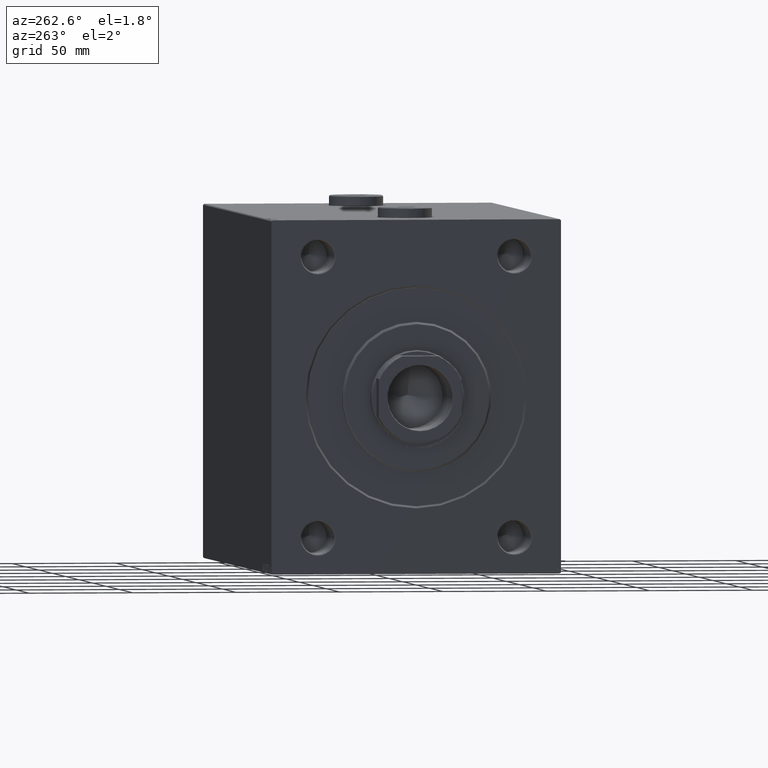
[diagram: clean part render]
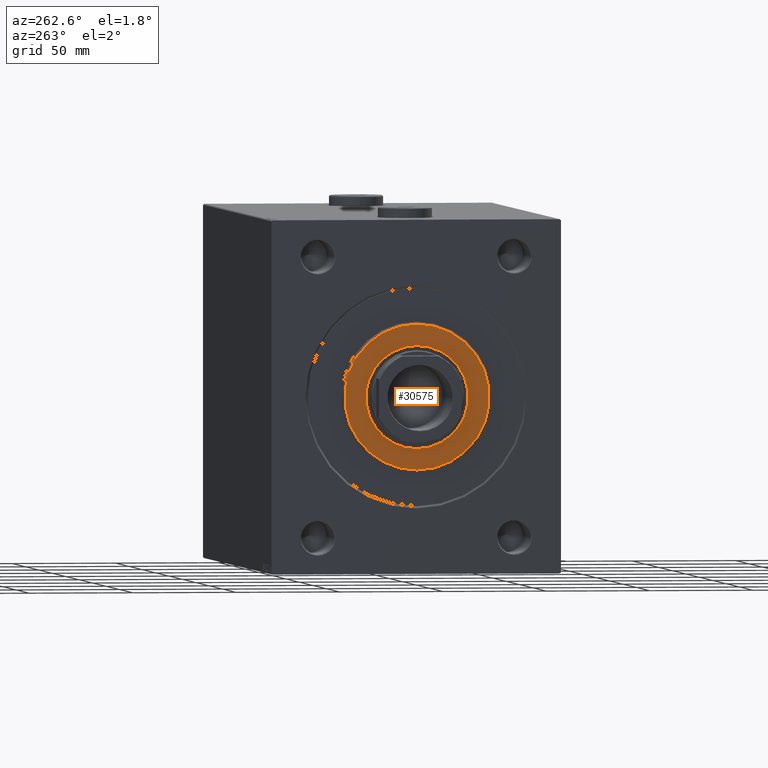
[diagram: same view with one face highlighted and labeled with its STEP entity id]
A machine part, auxiliary view. The second image highlights one B-rep face of the part: STEP entity #30575.
In plain terms, the highlighted planar face has unit normal (-1, 0, 0).
Its self-contained STEP definition (entity closure, byte-faithful):
#689 = CARTESIAN_POINT ( 'NONE',  ( 3.000000000000000000, 0.000000000000000000, 0.000000000000000000 ) ) ;
#1272 = EDGE_CURVE ( 'NONE', #11486, #17016, #29199, .T. ) ;
#1505 = CARTESIAN_POINT ( 'NONE',  ( 3.000000000000000000, 0.000000000000000000, 35.00000000000002842 ) ) ;
#2321 = CARTESIAN_POINT ( 'NONE',  ( 3.000000000000000000, 0.000000000000000000, 0.000000000000000000 ) ) ;
#3011 = EDGE_CURVE ( 'NONE', #18097, #12052, #11543, .T. ) ;
#5243 = CARTESIAN_POINT ( 'NONE',  ( 3.000000000000000000, 0.000000000000000000, 0.000000000000000000 ) ) ;
#6476 = DIRECTION ( 'NONE',  ( 0.000000000000000000, 0.000000000000000000, -1.000000000000000000 ) ) ;
#6724 = EDGE_CURVE ( 'NONE', #17016, #11486, #16116, .T. ) ;
#6743 = DIRECTION ( 'NONE',  ( 1.000000000000000000, -0.000000000000000000, 0.000000000000000000 ) ) ;
#8376 = FACE_OUTER_BOUND ( 'NONE', #32518, .T. ) ;
#10663 = DIRECTION ( 'NONE',  ( 0.000000000000000000, 0.000000000000000000, -1.000000000000000000 ) ) ;
#11172 = FACE_BOUND ( 'NONE', #31039, .T. ) ;
#11486 = VERTEX_POINT ( 'NONE', #32605 ) ;
#11543 = CIRCLE ( 'NONE', #41083, 35.00000000000002842 ) ;
#11635 = CARTESIAN_POINT ( 'NONE',  ( 3.000000000000000000, 4.347496136973104859E-15, -35.00000000000002842 ) ) ;
#12052 = VERTEX_POINT ( 'NONE', #11635 ) ;
#13390 = ORIENTED_EDGE ( 'NONE', *, *, #41042, .T. ) ;
#14411 = CARTESIAN_POINT ( 'NONE',  ( 3.000000000000000000, 0.000000000000000000, 0.000000000000000000 ) ) ;
#16116 = CIRCLE ( 'NONE', #23469, 24.75000000000000355 ) ;
#16682 = AXIS2_PLACEMENT_3D ( 'NONE', #5243, #37372, #23274 ) ;
#17016 = VERTEX_POINT ( 'NONE', #33372 ) ;
#18097 = VERTEX_POINT ( 'NONE', #1505 ) ;
#22478 = PLANE ( 'NONE',  #33000 ) ;
#22802 = AXIS2_PLACEMENT_3D ( 'NONE', #41377, #34214, #26823 ) ;
#23274 = DIRECTION ( 'NONE',  ( 0.000000000000000000, 0.000000000000000000, -1.000000000000000000 ) ) ;
#23469 = AXIS2_PLACEMENT_3D ( 'NONE', #2321, #30977, #6476 ) ;
#26823 = DIRECTION ( 'NONE',  ( 0.000000000000000000, 0.000000000000000000, -1.000000000000000000 ) ) ;
#28724 = DIRECTION ( 'NONE',  ( 1.000000000000000000, -0.000000000000000000, 0.000000000000000000 ) ) ;
#29199 = CIRCLE ( 'NONE', #16682, 24.75000000000000355 ) ;
#30575 = ADVANCED_FACE ( 'NONE', ( #8376, #11172 ), #22478, .T. ) ;
#30977 = DIRECTION ( 'NONE',  ( 1.000000000000000000, 0.000000000000000000, 0.000000000000000000 ) ) ;
#31039 = EDGE_LOOP ( 'NONE', ( #39129, #38833 ) ) ;
#32518 = EDGE_LOOP ( 'NONE', ( #33824, #13390 ) ) ;
#32605 = CARTESIAN_POINT ( 'NONE',  ( 3.000000000000000000, 3.031000827889699650E-15, 24.75000000000000355 ) ) ;
#33000 = AXIS2_PLACEMENT_3D ( 'NONE', #14411, #28724, #39134 ) ;
#33372 = CARTESIAN_POINT ( 'NONE',  ( 3.000000000000000000, 0.000000000000000000, -24.75000000000000355 ) ) ;
#33824 = ORIENTED_EDGE ( 'NONE', *, *, #3011, .T. ) ;
#34214 = DIRECTION ( 'NONE',  ( 1.000000000000000000, -0.000000000000000000, 0.000000000000000000 ) ) ;
#37372 = DIRECTION ( 'NONE',  ( 1.000000000000000000, 0.000000000000000000, 0.000000000000000000 ) ) ;
#38324 = CIRCLE ( 'NONE', #22802, 35.00000000000002842 ) ;
#38833 = ORIENTED_EDGE ( 'NONE', *, *, #1272, .F. ) ;
#39129 = ORIENTED_EDGE ( 'NONE', *, *, #6724, .F. ) ;
#39134 = DIRECTION ( 'NONE',  ( 0.000000000000000000, 0.000000000000000000, -1.000000000000000000 ) ) ;
#41042 = EDGE_CURVE ( 'NONE', #12052, #18097, #38324, .T. ) ;
#41083 = AXIS2_PLACEMENT_3D ( 'NONE', #689, #6743, #10663 ) ;
#41377 = CARTESIAN_POINT ( 'NONE',  ( 3.000000000000000000, 0.000000000000000000, 0.000000000000000000 ) ) ;